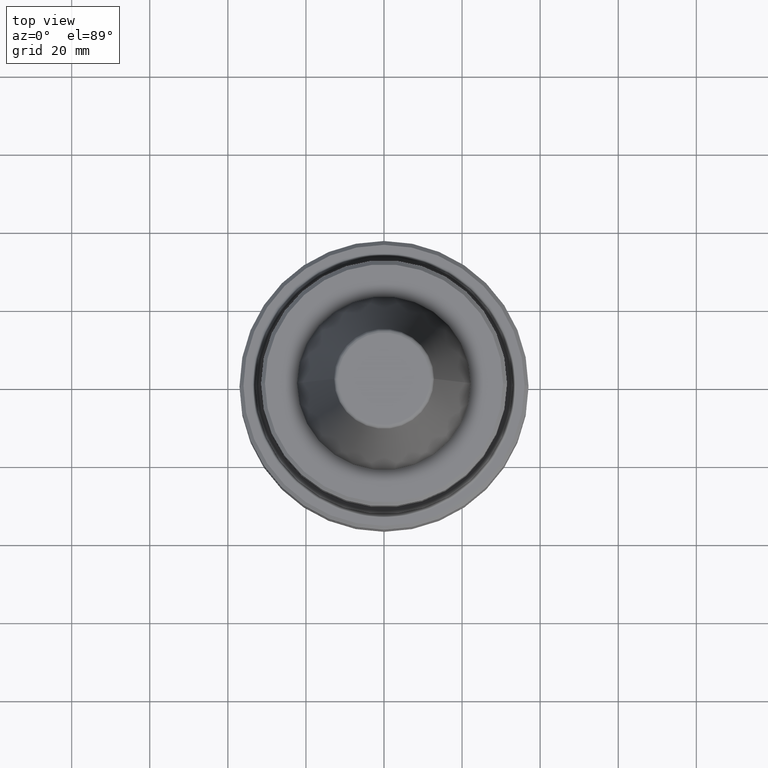
[diagram: clean part render]
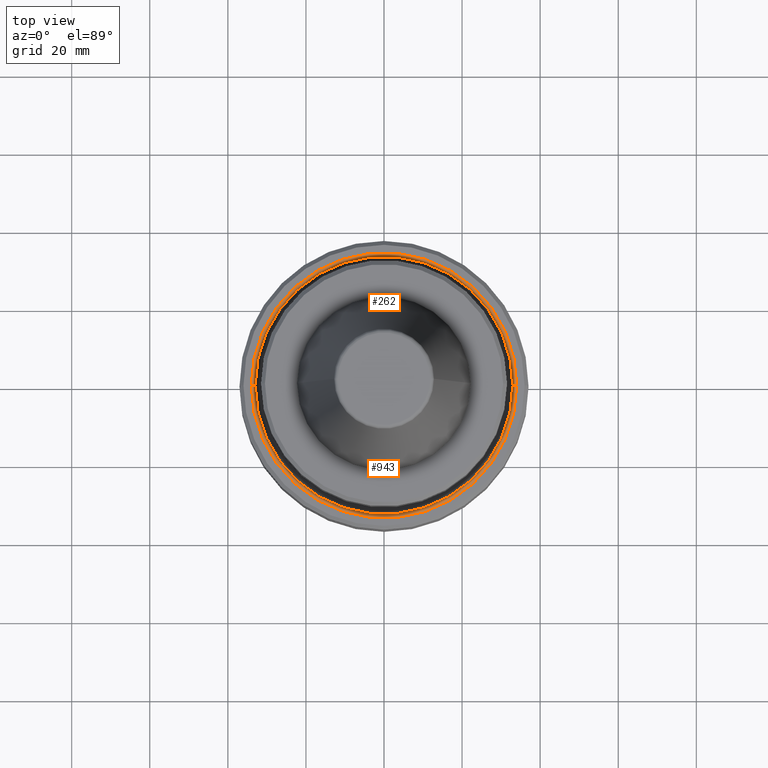
[diagram: same view with one multi-face feature highlighted, each face labeled with its STEP entity id]
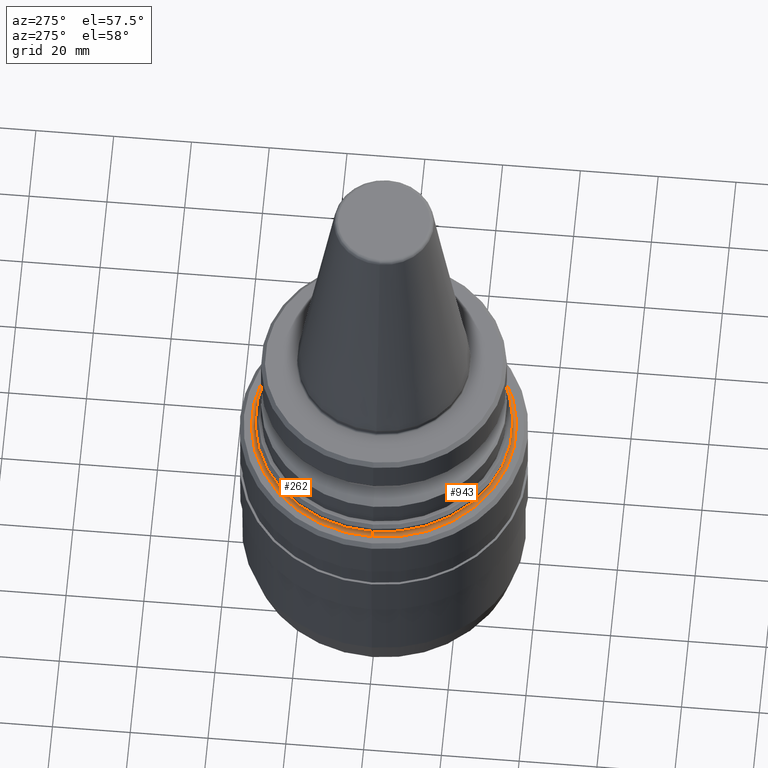
[diagram: same view with one multi-face feature highlighted, each face labeled with its STEP entity id]
A machine part, top view. The highlighted faces form ONE feature: a constant-radius fillet chain: 2 tangent blend faces with common blend radius 1 mm. The faces share edges in the B-rep.
A second angle (auxiliary view) of the same feature is appended — it is thin or edge-on in the first view.
Their STEP definitions:
[1] entity #262 (Torus):
#67 = DIRECTION ( 'NONE',  ( 0.0000000000000000000, 0.0000000000000000000, -1.000000000000000000 ) ) ;
#101 = DIRECTION ( 'NONE',  ( 0.0000000000000000000, -1.000000000000000000, 0.0000000000000000000 ) ) ;
#111 = CARTESIAN_POINT ( 'NONE',  ( 34.00000000000002800, 0.0000000000000000000, -31.00000000000102700 ) ) ;
#160 = CARTESIAN_POINT ( 'NONE',  ( 0.0000000000000000000, 0.0000000000000000000, -32.00000000000091700 ) ) ;
#246 = AXIS2_PLACEMENT_3D ( 'NONE', #160, #1073, #299 ) ;
#258 = CIRCLE ( 'NONE', #363, 1.000000000000000900 ) ;
#262 = ADVANCED_FACE ( 'NONE', ( #1279 ), #986, .F. ) ;
#269 = EDGE_LOOP ( 'NONE', ( #551, #1427, #1296, #1397 ) ) ;
#273 = DIRECTION ( 'NONE',  ( -1.000000000000000000, 1.224646799147357200E-016, 0.0000000000000000000 ) ) ;
#299 = DIRECTION ( 'NONE',  ( 1.000000000000000000, 0.0000000000000000000, 0.0000000000000000000 ) ) ;
#349 = CARTESIAN_POINT ( 'NONE',  ( -32.99999999999991500, 4.102566777143629800E-015, -31.00000000000102700 ) ) ;
#363 = AXIS2_PLACEMENT_3D ( 'NONE', #1591, #1203, #273 ) ;
#394 = EDGE_CURVE ( 'NONE', #1223, #816, #258, .T. ) ;
#548 = CARTESIAN_POINT ( 'NONE',  ( 0.0000000000000000000, 0.0000000000000000000, -31.00000000000102700 ) ) ;
#551 = ORIENTED_EDGE ( 'NONE', *, *, #394, .F. ) ;
#648 = DIRECTION ( 'NONE',  ( 1.000000000000000000, 0.0000000000000000000, 0.0000000000000000000 ) ) ;
#679 = DIRECTION ( 'NONE',  ( 1.000000000000000000, 0.0000000000000000000, 0.0000000000000000000 ) ) ;
#816 = VERTEX_POINT ( 'NONE', #1641 ) ;
#852 = EDGE_CURVE ( 'NONE', #1357, #1453, #1421, .T. ) ;
#900 = CARTESIAN_POINT ( 'NONE',  ( 32.99999999999991500, 0.0000000000000000000, -31.00000000000102700 ) ) ;
#920 = AXIS2_PLACEMENT_3D ( 'NONE', #1473, #1520, #648 ) ;
#973 = EDGE_CURVE ( 'NONE', #1453, #816, #1277, .T. ) ;
#986 = TOROIDAL_SURFACE ( 'NONE', #920, 34.00000000000002800, 1.000000000000000900 ) ;
#1052 = AXIS2_PLACEMENT_3D ( 'NONE', #111, #101, #67 ) ;
#1066 = CARTESIAN_POINT ( 'NONE',  ( 34.00000000000002800, 0.0000000000000000000, -32.00000000000097300 ) ) ;
#1073 = DIRECTION ( 'NONE',  ( -0.0000000000000000000, -0.0000000000000000000, 1.000000000000000000 ) ) ;
#1203 = DIRECTION ( 'NONE',  ( 1.224646799147353200E-016, 1.000000000000000000, 0.0000000000000000000 ) ) ;
#1223 = VERTEX_POINT ( 'NONE', #349 ) ;
#1277 = CIRCLE ( 'NONE', #246, 34.00000000000002800 ) ;
#1279 = FACE_OUTER_BOUND ( 'NONE', #269, .T. ) ;
#1296 = ORIENTED_EDGE ( 'NONE', *, *, #852, .T. ) ;
#1357 = VERTEX_POINT ( 'NONE', #900 ) ;
#1393 = EDGE_CURVE ( 'NONE', #1357, #1223, #1474, .T. ) ;
#1397 = ORIENTED_EDGE ( 'NONE', *, *, #973, .T. ) ;
#1403 = DIRECTION ( 'NONE',  ( -0.0000000000000000000, -0.0000000000000000000, 1.000000000000000000 ) ) ;
#1421 = CIRCLE ( 'NONE', #1052, 1.000000000000000900 ) ;
#1427 = ORIENTED_EDGE ( 'NONE', *, *, #1393, .F. ) ;
#1453 = VERTEX_POINT ( 'NONE', #1066 ) ;
#1473 = CARTESIAN_POINT ( 'NONE',  ( 0.0000000000000000000, 0.0000000000000000000, -31.00000000000102700 ) ) ;
#1474 = CIRCLE ( 'NONE', #1632, 32.99999999999991500 ) ;
#1520 = DIRECTION ( 'NONE',  ( -0.0000000000000000000, -0.0000000000000000000, 1.000000000000000000 ) ) ;
#1591 = CARTESIAN_POINT ( 'NONE',  ( -34.00000000000002800, 4.163799117101004500E-015, -31.00000000000102700 ) ) ;
#1632 = AXIS2_PLACEMENT_3D ( 'NONE', #548, #1403, #679 ) ;
#1641 = CARTESIAN_POINT ( 'NONE',  ( -34.00000000000002800, 4.163799117101004500E-015, -32.00000000000097300 ) ) ;
[2] entity #943 (Torus):
#17 = CARTESIAN_POINT ( 'NONE',  ( 0.0000000000000000000, 0.0000000000000000000, -31.00000000000102700 ) ) ;
#67 = DIRECTION ( 'NONE',  ( 0.0000000000000000000, 0.0000000000000000000, -1.000000000000000000 ) ) ;
#101 = DIRECTION ( 'NONE',  ( 0.0000000000000000000, -1.000000000000000000, 0.0000000000000000000 ) ) ;
#111 = CARTESIAN_POINT ( 'NONE',  ( 34.00000000000002800, 0.0000000000000000000, -31.00000000000102700 ) ) ;
#133 = AXIS2_PLACEMENT_3D ( 'NONE', #697, #1042, #485 ) ;
#138 = AXIS2_PLACEMENT_3D ( 'NONE', #17, #1291, #153 ) ;
#153 = DIRECTION ( 'NONE',  ( 1.000000000000000000, 0.0000000000000000000, 0.0000000000000000000 ) ) ;
#258 = CIRCLE ( 'NONE', #363, 1.000000000000000900 ) ;
#273 = DIRECTION ( 'NONE',  ( -1.000000000000000000, 1.224646799147357200E-016, 0.0000000000000000000 ) ) ;
#349 = CARTESIAN_POINT ( 'NONE',  ( -32.99999999999991500, 4.102566777143629800E-015, -31.00000000000102700 ) ) ;
#363 = AXIS2_PLACEMENT_3D ( 'NONE', #1591, #1203, #273 ) ;
#394 = EDGE_CURVE ( 'NONE', #1223, #816, #258, .T. ) ;
#429 = AXIS2_PLACEMENT_3D ( 'NONE', #771, #1278, #1144 ) ;
#485 = DIRECTION ( 'NONE',  ( 1.000000000000000000, 0.0000000000000000000, 0.0000000000000000000 ) ) ;
#599 = CIRCLE ( 'NONE', #133, 32.99999999999991500 ) ;
#697 = CARTESIAN_POINT ( 'NONE',  ( 0.0000000000000000000, 0.0000000000000000000, -31.00000000000102700 ) ) ;
#717 = EDGE_CURVE ( 'NONE', #1223, #1357, #599, .T. ) ;
#771 = CARTESIAN_POINT ( 'NONE',  ( 0.0000000000000000000, 0.0000000000000000000, -32.00000000000091700 ) ) ;
#816 = VERTEX_POINT ( 'NONE', #1641 ) ;
#821 = EDGE_CURVE ( 'NONE', #816, #1453, #1157, .T. ) ;
#852 = EDGE_CURVE ( 'NONE', #1357, #1453, #1421, .T. ) ;
#900 = CARTESIAN_POINT ( 'NONE',  ( 32.99999999999991500, 0.0000000000000000000, -31.00000000000102700 ) ) ;
#943 = ADVANCED_FACE ( 'NONE', ( #1006 ), #1600, .F. ) ;
#992 = ORIENTED_EDGE ( 'NONE', *, *, #394, .T. ) ;
#1006 = FACE_OUTER_BOUND ( 'NONE', #1629, .T. ) ;
#1042 = DIRECTION ( 'NONE',  ( -0.0000000000000000000, -0.0000000000000000000, 1.000000000000000000 ) ) ;
#1052 = AXIS2_PLACEMENT_3D ( 'NONE', #111, #101, #67 ) ;
#1066 = CARTESIAN_POINT ( 'NONE',  ( 34.00000000000002800, 0.0000000000000000000, -32.00000000000097300 ) ) ;
#1098 = ORIENTED_EDGE ( 'NONE', *, *, #821, .T. ) ;
#1144 = DIRECTION ( 'NONE',  ( 1.000000000000000000, 0.0000000000000000000, 0.0000000000000000000 ) ) ;
#1157 = CIRCLE ( 'NONE', #429, 34.00000000000002800 ) ;
#1203 = DIRECTION ( 'NONE',  ( 1.224646799147353200E-016, 1.000000000000000000, 0.0000000000000000000 ) ) ;
#1223 = VERTEX_POINT ( 'NONE', #349 ) ;
#1278 = DIRECTION ( 'NONE',  ( -0.0000000000000000000, -0.0000000000000000000, 1.000000000000000000 ) ) ;
#1286 = ORIENTED_EDGE ( 'NONE', *, *, #852, .F. ) ;
#1291 = DIRECTION ( 'NONE',  ( -0.0000000000000000000, -0.0000000000000000000, 1.000000000000000000 ) ) ;
#1357 = VERTEX_POINT ( 'NONE', #900 ) ;
#1394 = ORIENTED_EDGE ( 'NONE', *, *, #717, .F. ) ;
#1421 = CIRCLE ( 'NONE', #1052, 1.000000000000000900 ) ;
#1453 = VERTEX_POINT ( 'NONE', #1066 ) ;
#1591 = CARTESIAN_POINT ( 'NONE',  ( -34.00000000000002800, 4.163799117101004500E-015, -31.00000000000102700 ) ) ;
#1600 = TOROIDAL_SURFACE ( 'NONE', #138, 34.00000000000002800, 1.000000000000000900 ) ;
#1629 = EDGE_LOOP ( 'NONE', ( #1394, #992, #1098, #1286 ) ) ;
#1641 = CARTESIAN_POINT ( 'NONE',  ( -34.00000000000002800, 4.163799117101004500E-015, -32.00000000000097300 ) ) ;